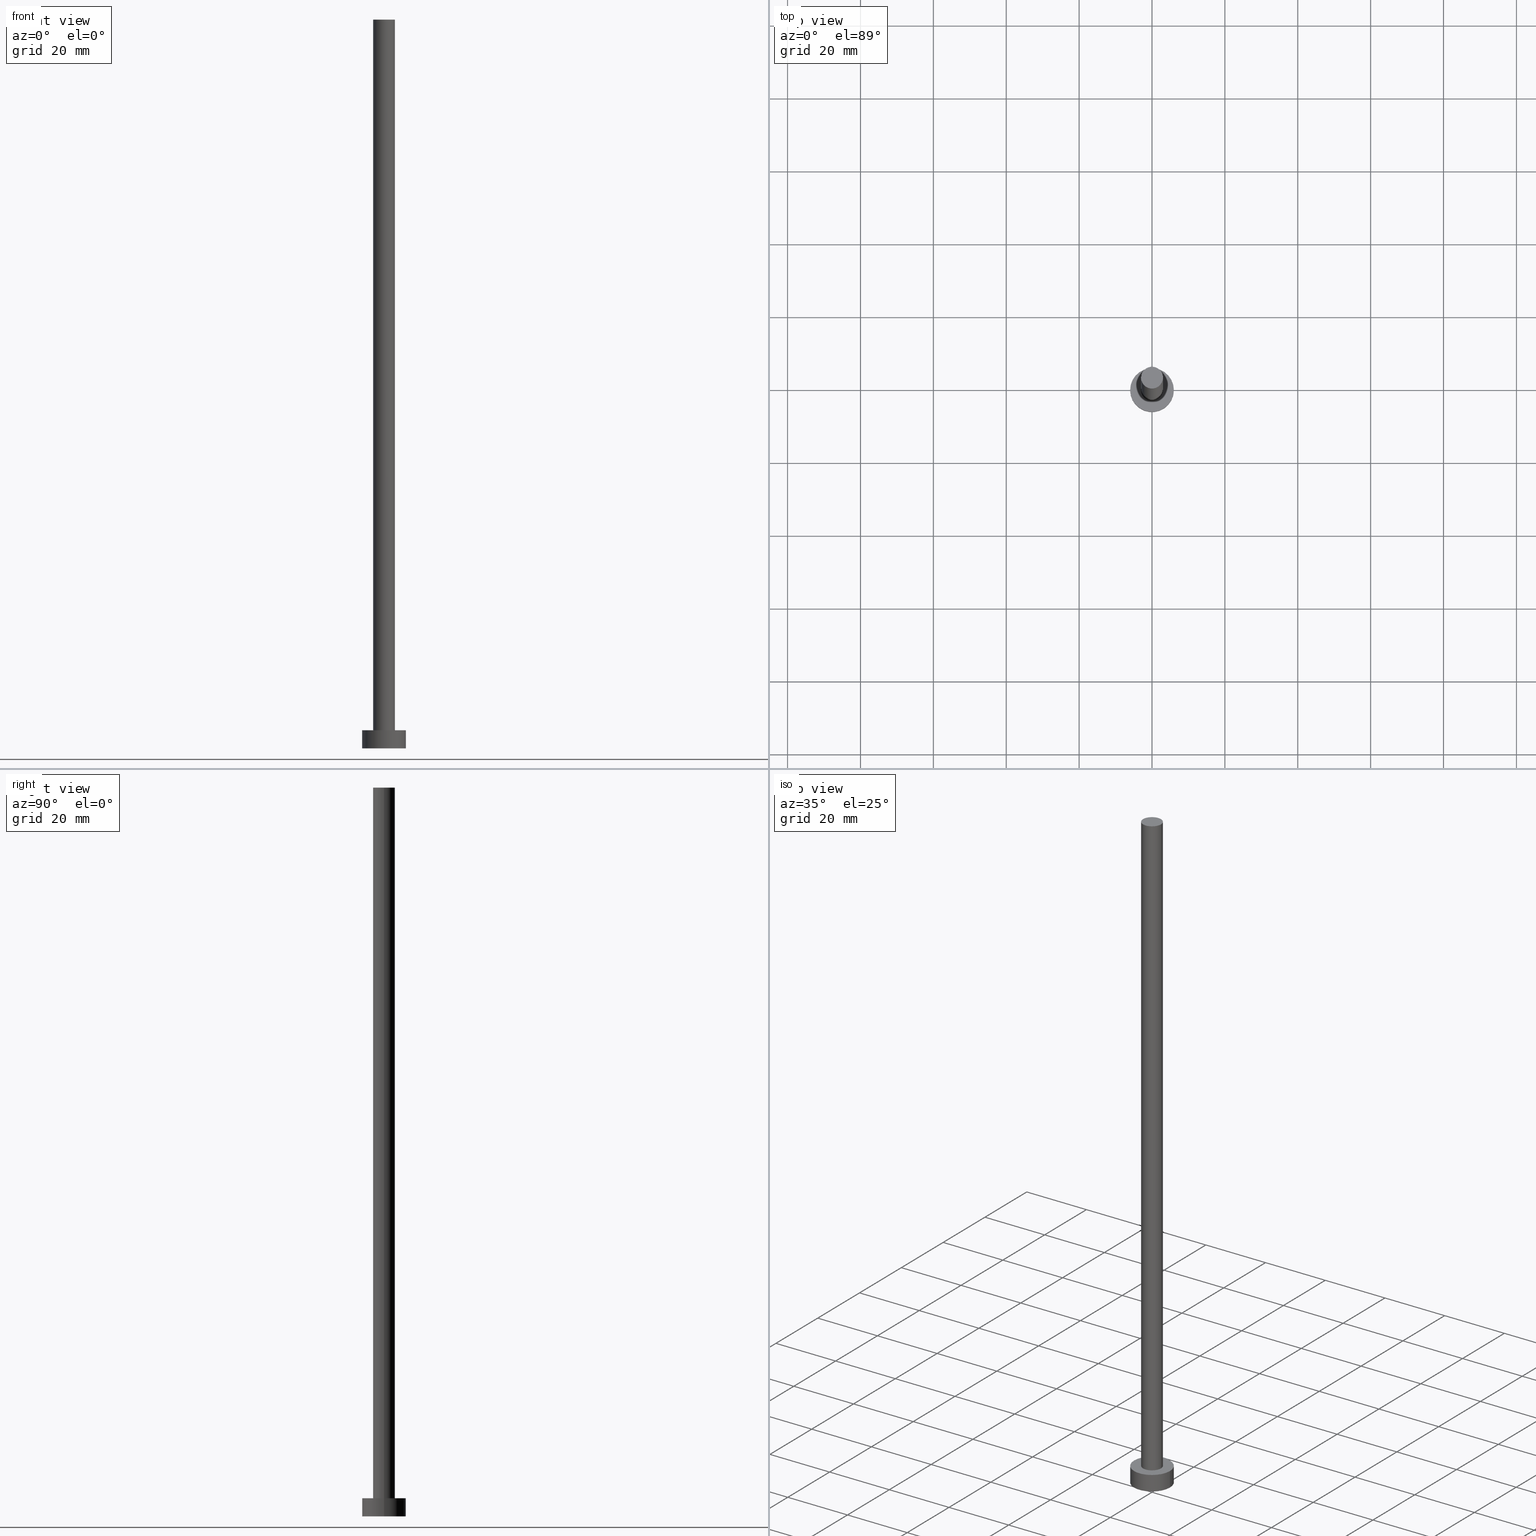
[diagram: canonical four-view strip — front | top / right | iso, engineering-drawing reading convention]
A machine part, canonical four-view strip (front | top / right | iso — engineering-drawing reading convention). The complete STEP part file that produces these views, byte-faithful:
ISO-10303-21;
HEADER;
FILE_DESCRIPTION (( 'STEP AP203' ),
    '1' );
FILE_NAME ('f9cd.STEP',
    '2023-02-12T12:19:15',
    ( '' ),
    ( '' ),
    'SwSTEP 2.0',
    'SolidWorks 2019',
    '' );
FILE_SCHEMA (( 'CONFIG_CONTROL_DESIGN' ));
ENDSEC;

DATA;
#1 = DIRECTION ( 'NONE',  ( 1.000000000000000000, 0.000000000000000000, 0.000000000000000000 ) ) ;
#2 = APPROVAL_DATE_TIME ( #200, #25 ) ;
#3 = CC_DESIGN_APPROVAL ( #128, ( #232 ) ) ;
#4 = EDGE_LOOP ( 'NONE', ( #6, #147 ) ) ;
#5 = APPROVAL ( #41, 'NEUR�EN�' ) ;
#6 = ORIENTED_EDGE ( 'NONE', *, *, #60, .T. ) ;
#7 = APPROVAL_PERSON_ORGANIZATION ( #24, #25, #243 ) ;
#8 = FACE_BOUND ( 'NONE', #68, .T. ) ;
#9 = ADVANCED_FACE ( 'NONE', ( #8, #231 ), #89, .T. ) ;
#10 = ORIENTED_EDGE ( 'NONE', *, *, #113, .F. ) ;
#11 = AXIS2_PLACEMENT_3D ( 'NONE', #175, #195, #137 ) ;
#12 = AXIS2_PLACEMENT_3D ( 'NONE', #32, #215, #219 ) ;
#13 = CARTESIAN_POINT ( 'NONE',  ( 0.000000000000000000, 0.000000000000000000, 5.000000000000000000 ) ) ;
#14 = DIRECTION ( 'NONE',  ( 1.000000000000000000, 0.000000000000000000, 0.000000000000000000 ) ) ;
#15 = DIRECTION ( 'NONE',  ( -1.000000000000000000, 0.000000000000000000, 0.000000000000000000 ) ) ;
#16 = CYLINDRICAL_SURFACE ( 'NONE', #151, 3.000000000000000444 ) ;
#17 = AXIS2_PLACEMENT_3D ( 'NONE', #196, #96, #217 ) ;
#18 = CC_DESIGN_DATE_AND_TIME_ASSIGNMENT ( #123, #61, ( #70 ) ) ;
#19 = FACE_OUTER_BOUND ( 'NONE', #4, .T. ) ;
#20 = CIRCLE ( 'NONE', #188, 6.000000000000000888 ) ;
#21 = APPROVAL_ROLE ( '' ) ;
#22 = AXIS2_PLACEMENT_3D ( 'NONE', #72, #112, #33 ) ;
#23 = COORDINATED_UNIVERSAL_TIME_OFFSET ( 1, 0, .AHEAD. ) ;
#24 = PERSON_AND_ORGANIZATION ( #133, #164 ) ;
#25 = APPROVAL ( #62, 'NEUR�EN�' ) ;
#26 = APPROVAL_ROLE ( '' ) ;
#27 = ORIENTED_EDGE ( 'NONE', *, *, #82, .F. ) ;
#28 = AXIS2_PLACEMENT_3D ( 'NONE', #252, #197, #97 ) ;
#29 = VERTEX_POINT ( 'NONE', #233 ) ;
#30 = ORIENTED_EDGE ( 'NONE', *, *, #102, .T. ) ;
#31 = DIRECTION ( 'NONE',  ( 0.000000000000000000, 0.000000000000000000, 1.000000000000000000 ) ) ;
#32 = CARTESIAN_POINT ( 'NONE',  ( 0.000000000000000000, 0.000000000000000000, 5.000000000000000000 ) ) ;
#33 = DIRECTION ( 'NONE',  ( 1.000000000000000000, 0.000000000000000000, -0.000000000000000000 ) ) ;
#34 = DIRECTION ( 'NONE',  ( -0.000000000000000000, -0.000000000000000000, -1.000000000000000000 ) ) ;
#35 = CARTESIAN_POINT ( 'NONE',  ( -6.000000000000000888, 0.000000000000000000, 0.000000000000000000 ) ) ;
#36 = PRODUCT_RELATED_PRODUCT_CATEGORY ( 'detail', '', ( #162 ) ) ;
#37 = VECTOR ( 'NONE', #78, 1000.000000000000000 ) ;
#38 = CYLINDRICAL_SURFACE ( 'NONE', #160, 3.000000000000000444 ) ;
#39 = ADVANCED_BREP_SHAPE_REPRESENTATION ( 'f9cd', ( #87, #206 ), #178 ) ;
#40 = CALENDAR_DATE ( 2023, 12, 2 ) ;
#41 = APPROVAL_STATUS ( 'not_yet_approved' ) ;
#42 = CC_DESIGN_APPROVAL ( #25, ( #122 ) ) ;
#43 = PLANE ( 'NONE',  #194 ) ;
#44 = CC_DESIGN_DATE_AND_TIME_ASSIGNMENT ( #240, #176, ( #232 ) ) ;
#45 = ORIENTED_EDGE ( 'NONE', *, *, #213, .T. ) ;
#46 = VECTOR ( 'NONE', #116, 1000.000000000000000 ) ;
#47 = EDGE_LOOP ( 'NONE', ( #10, #85 ) ) ;
#48 = SHAPE_DEFINITION_REPRESENTATION ( #84, #39 ) ;
#49 = CARTESIAN_POINT ( 'NONE',  ( 0.000000000000000000, 0.000000000000000000, 5.000000000000000000 ) ) ;
#50 = APPROVAL_PERSON_ORGANIZATION ( #205, #5, #21 ) ;
#51 = CARTESIAN_POINT ( 'NONE',  ( 3.000000000000000444, 3.673940397442060361E-16, 200.0000000000000000 ) ) ;
#52 = EDGE_CURVE ( 'NONE', #103, #229, #161, .T. ) ;
#53 = CYLINDRICAL_SURFACE ( 'NONE', #134, 6.000000000000000888 ) ;
#54 = CARTESIAN_POINT ( 'NONE',  ( 3.000000000000000444, 3.673940397442060361E-16, 200.0000000000000000 ) ) ;
#55 = DIRECTION ( 'NONE',  ( -0.000000000000000000, -0.000000000000000000, -1.000000000000000000 ) ) ;
#56 = EDGE_CURVE ( 'NONE', #29, #127, #20, .T. ) ;
#57 = CARTESIAN_POINT ( 'NONE',  ( -3.000000000000000444, 0.000000000000000000, 5.000000000000000000 ) ) ;
#58 = PERSON_AND_ORGANIZATION_ROLE ( 'creator' ) ;
#59 =( NAMED_UNIT ( * ) SI_UNIT ( $, .STERADIAN. ) SOLID_ANGLE_UNIT ( ) );
#60 = EDGE_CURVE ( 'NONE', #209, #64, #71, .T. ) ;
#61 = DATE_TIME_ROLE ( 'creation_date' ) ;
#62 = APPROVAL_STATUS ( 'not_yet_approved' ) ;
#63 = DATE_AND_TIME ( #187, #184 ) ;
#64 = VERTEX_POINT ( 'NONE', #54 ) ;
#65 = ORIENTED_EDGE ( 'NONE', *, *, #226, .T. ) ;
#66 = VERTEX_POINT ( 'NONE', #247 ) ;
#67 = ORIENTED_EDGE ( 'NONE', *, *, #60, .F. ) ;
#68 = EDGE_LOOP ( 'NONE', ( #86, #144 ) ) ;
#69 = CARTESIAN_POINT ( 'NONE',  ( -3.000000000000000444, 0.000000000000000000, 200.0000000000000000 ) ) ;
#70 = PRODUCT_DEFINITION ( 'NEZN�M�', '', #122, #73 ) ;
#71 = CIRCLE ( 'NONE', #28, 3.000000000000000444 ) ;
#72 = CARTESIAN_POINT ( 'NONE',  ( 0.000000000000000000, 0.000000000000000000, 0.000000000000000000 ) ) ;
#73 = DESIGN_CONTEXT ( 'detailed design', #119, 'design' ) ;
#74 = LINE ( 'NONE', #238, #173 ) ;
#75 = APPROVAL_PERSON_ORGANIZATION ( #80, #128, #26 ) ;
#76 = DIRECTION ( 'NONE',  ( 0.000000000000000000, 0.000000000000000000, 1.000000000000000000 ) ) ;
#77 = ADVANCED_FACE ( 'NONE', ( #149 ), #16, .T. ) ;
#78 = DIRECTION ( 'NONE',  ( -0.000000000000000000, -0.000000000000000000, -1.000000000000000000 ) ) ;
#79 = PERSON_AND_ORGANIZATION ( #133, #164 ) ;
#80 = PERSON_AND_ORGANIZATION ( #133, #164 ) ;
#81 = DIRECTION ( 'NONE',  ( 0.000000000000000000, 0.000000000000000000, 1.000000000000000000 ) ) ;
#82 = EDGE_CURVE ( 'NONE', #64, #209, #230, .T. ) ;
#83 = PERSON_AND_ORGANIZATION_ROLE ( 'design_owner' ) ;
#84 = PRODUCT_DEFINITION_SHAPE ( 'NONE', 'NONE',  #70 ) ;
#85 = ORIENTED_EDGE ( 'NONE', *, *, #52, .F. ) ;
#86 = ORIENTED_EDGE ( 'NONE', *, *, #108, .F. ) ;
#87 = MANIFOLD_SOLID_BREP ( 'P�idat vysunut�m3', #143 ) ;
#88 = CC_DESIGN_PERSON_AND_ORGANIZATION_ASSIGNMENT ( #183, #83, ( #162 ) ) ;
#89 = PLANE ( 'NONE',  #212 ) ;
#90 = ORIENTED_EDGE ( 'NONE', *, *, #56, .T. ) ;
#91 = CC_DESIGN_PERSON_AND_ORGANIZATION_ASSIGNMENT ( #201, #121, ( #70 ) ) ;
#92 = CARTESIAN_POINT ( 'NONE',  ( 0.000000000000000000, 0.000000000000000000, 5.000000000000000000 ) ) ;
#93 = LOCAL_TIME ( 13, 19, 15.00000000000000000, #141 ) ;
#94 = DIRECTION ( 'NONE',  ( -1.000000000000000000, 0.000000000000000000, 0.000000000000000000 ) ) ;
#95 = DIRECTION ( 'NONE',  ( 1.000000000000000000, 0.000000000000000000, 0.000000000000000000 ) ) ;
#96 = DIRECTION ( 'NONE',  ( 0.000000000000000000, 0.000000000000000000, 1.000000000000000000 ) ) ;
#97 = DIRECTION ( 'NONE',  ( 1.000000000000000000, 0.000000000000000000, 0.000000000000000000 ) ) ;
#98 = DIRECTION ( 'NONE',  ( 1.000000000000000000, 0.000000000000000000, 0.000000000000000000 ) ) ;
#99 = PERSON_AND_ORGANIZATION_ROLE ( 'design_supplier' ) ;
#100 = CC_DESIGN_APPROVAL ( #5, ( #70 ) ) ;
#101 = APPROVAL_DATE_TIME ( #204, #5 ) ;
#102 = EDGE_CURVE ( 'NONE', #209, #163, #193, .T. ) ;
#103 = VERTEX_POINT ( 'NONE', #110 ) ;
#104 = ORIENTED_EDGE ( 'NONE', *, *, #52, .T. ) ;
#105 = APPROVAL_DATE_TIME ( #63, #128 ) ;
#106 = ORIENTED_EDGE ( 'NONE', *, *, #108, .T. ) ;
#107 = DIRECTION ( 'NONE',  ( 1.000000000000000000, 0.000000000000000000, -0.000000000000000000 ) ) ;
#108 = EDGE_CURVE ( 'NONE', #163, #66, #218, .T. ) ;
#109 = DIRECTION ( 'NONE',  ( 1.000000000000000000, 0.000000000000000000, 0.000000000000000000 ) ) ;
#110 = CARTESIAN_POINT ( 'NONE',  ( 6.000000000000000888, 7.347880794884120722E-16, 0.000000000000000000 ) ) ;
#111 = CARTESIAN_POINT ( 'NONE',  ( 0.000000000000000000, 0.000000000000000000, 200.0000000000000000 ) ) ;
#112 = DIRECTION ( 'NONE',  ( 0.000000000000000000, 0.000000000000000000, 1.000000000000000000 ) ) ;
#113 = EDGE_CURVE ( 'NONE', #229, #103, #186, .T. ) ;
#114 = FACE_OUTER_BOUND ( 'NONE', #126, .T. ) ;
#115 = LOCAL_TIME ( 13, 19, 15.00000000000000000, #23 ) ;
#116 = DIRECTION ( 'NONE',  ( -0.000000000000000000, -0.000000000000000000, -1.000000000000000000 ) ) ;
#117 = EDGE_CURVE ( 'NONE', #66, #163, #124, .T. ) ;
#118 = APPLICATION_PROTOCOL_DEFINITION ( 'international standard', 'config_control_design', 1994, #119 ) ;
#119 = APPLICATION_CONTEXT ( 'configuration controlled 3d designs of mechanical parts and assemblies' ) ;
#120 = VECTOR ( 'NONE', #138, 1000.000000000000000 ) ;
#121 = PERSON_AND_ORGANIZATION_ROLE ( 'creator' ) ;
#122 = PRODUCT_DEFINITION_FORMATION_WITH_SPECIFIED_SOURCE ( 'LIBOVOLN�', '', #162, .NOT_KNOWN. ) ;
#123 = DATE_AND_TIME ( #253, #237 ) ;
#124 = CIRCLE ( 'NONE', #202, 3.000000000000000444 ) ;
#125 = ORIENTED_EDGE ( 'NONE', *, *, #180, .T. ) ;
#126 = EDGE_LOOP ( 'NONE', ( #145, #67, #30, #106 ) ) ;
#127 = VERTEX_POINT ( 'NONE', #234 ) ;
#128 = APPROVAL ( #242, 'NEUR�EN�' ) ;
#129 = CARTESIAN_POINT ( 'NONE',  ( 0.000000000000000000, 0.000000000000000000, 0.000000000000000000 ) ) ;
#130 = AXIS2_PLACEMENT_3D ( 'NONE', #129, #211, #109 ) ;
#131 = CARTESIAN_POINT ( 'NONE',  ( 0.000000000000000000, 0.000000000000000000, 200.0000000000000000 ) ) ;
#132 = DIRECTION ( 'NONE',  ( -0.000000000000000000, -0.000000000000000000, -1.000000000000000000 ) ) ;
#133 = PERSON ( 'NEUR�EN�', 'NEUR�EN�', 'NEUR�EN�', ('NEUR�EN�'), ('NEUR�EN�'), ('NEUR�EN�') ) ;
#134 = AXIS2_PLACEMENT_3D ( 'NONE', #251, #132, #94 ) ;
#135 = EDGE_CURVE ( 'NONE', #64, #66, #249, .T. ) ;
#136 = CARTESIAN_POINT ( 'NONE',  ( 0.000000000000000000, 0.000000000000000000, 200.0000000000000000 ) ) ;
#137 = DIRECTION ( 'NONE',  ( 1.000000000000000000, 0.000000000000000000, 0.000000000000000000 ) ) ;
#138 = DIRECTION ( 'NONE',  ( -0.000000000000000000, -0.000000000000000000, -1.000000000000000000 ) ) ;
#139 = CARTESIAN_POINT ( 'NONE',  ( 0.000000000000000000, 0.000000000000000000, 0.000000000000000000 ) ) ;
#140 = COORDINATED_UNIVERSAL_TIME_OFFSET ( 1, 0, .AHEAD. ) ;
#141 = COORDINATED_UNIVERSAL_TIME_OFFSET ( 1, 0, .AHEAD. ) ;
#142 = DIRECTION ( 'NONE',  ( 1.000000000000000000, 0.000000000000000000, -0.000000000000000000 ) ) ;
#143 = CLOSED_SHELL ( 'NONE', ( #77, #158, #166, #9, #210, #174, #250 ) ) ;
#144 = ORIENTED_EDGE ( 'NONE', *, *, #117, .F. ) ;
#145 = ORIENTED_EDGE ( 'NONE', *, *, #135, .F. ) ;
#146 = ORIENTED_EDGE ( 'NONE', *, *, #102, .F. ) ;
#147 = ORIENTED_EDGE ( 'NONE', *, *, #82, .T. ) ;
#148 = ORIENTED_EDGE ( 'NONE', *, *, #226, .F. ) ;
#149 = FACE_OUTER_BOUND ( 'NONE', #246, .T. ) ;
#150 = PLANE ( 'NONE',  #22 ) ;
#151 = AXIS2_PLACEMENT_3D ( 'NONE', #111, #55, #15 ) ;
#152 = CARTESIAN_POINT ( 'NONE',  ( 0.000000000000000000, 0.000000000000000000, 0.000000000000000000 ) ) ;
#153 = LOCAL_TIME ( 13, 19, 15.00000000000000000, #140 ) ;
#154 = DIRECTION ( 'NONE',  ( -1.000000000000000000, 0.000000000000000000, 0.000000000000000000 ) ) ;
#155 = DIRECTION ( 'NONE',  ( 1.000000000000000000, 0.000000000000000000, 0.000000000000000000 ) ) ;
#156 = SECURITY_CLASSIFICATION_LEVEL ( 'unclassified' ) ;
#157 =( NAMED_UNIT ( * ) PLANE_ANGLE_UNIT ( ) SI_UNIT ( $, .RADIAN. ) );
#158 = ADVANCED_FACE ( 'NONE', ( #239 ), #53, .T. ) ;
#159 = PERSON_AND_ORGANIZATION ( #133, #164 ) ;
#160 = AXIS2_PLACEMENT_3D ( 'NONE', #131, #172, #154 ) ;
#161 = CIRCLE ( 'NONE', #130, 6.000000000000000888 ) ;
#162 = PRODUCT ( 'f9cd', 'f9cd', '', ( #179 ) ) ;
#163 = VERTEX_POINT ( 'NONE', #57 ) ;
#164 = ORGANIZATION ( 'NEUR�EN�', 'NEUR�EN�', '' ) ;
#165 = EDGE_LOOP ( 'NONE', ( #148, #45, #104, #190 ) ) ;
#166 = ADVANCED_FACE ( 'NONE', ( #216 ), #171, .T. ) ;
#167 = ORIENTED_EDGE ( 'NONE', *, *, #135, .T. ) ;
#168 = DIRECTION ( 'NONE',  ( 0.000000000000000000, 0.000000000000000000, 1.000000000000000000 ) ) ;
#169 = CARTESIAN_POINT ( 'NONE',  ( -6.000000000000000888, 0.000000000000000000, 5.000000000000000000 ) ) ;
#170 = CC_DESIGN_PERSON_AND_ORGANIZATION_ASSIGNMENT ( #203, #99, ( #122 ) ) ;
#171 = CYLINDRICAL_SURFACE ( 'NONE', #12, 6.000000000000000888 ) ;
#172 = DIRECTION ( 'NONE',  ( -0.000000000000000000, -0.000000000000000000, -1.000000000000000000 ) ) ;
#173 = VECTOR ( 'NONE', #34, 1000.000000000000000 ) ;
#174 = ADVANCED_FACE ( 'NONE', ( #114 ), #38, .T. ) ;
#175 = CARTESIAN_POINT ( 'NONE',  ( 0.000000000000000000, 0.000000000000000000, 5.000000000000000000 ) ) ;
#176 = DATE_TIME_ROLE ( 'classification_date' ) ;
#177 = APPLICATION_CONTEXT ( 'configuration controlled 3d designs of mechanical parts and assemblies' ) ;
#178 =( GEOMETRIC_REPRESENTATION_CONTEXT ( 3 ) GLOBAL_UNCERTAINTY_ASSIGNED_CONTEXT ( ( #241 ) ) GLOBAL_UNIT_ASSIGNED_CONTEXT ( ( #181, #157, #59 ) ) REPRESENTATION_CONTEXT ( 'NONE', 'WORKASPACE' ) );
#179 = MECHANICAL_CONTEXT ( 'NONE', #177, 'mechanical' ) ;
#180 = EDGE_CURVE ( 'NONE', #29, #229, #214, .T. ) ;
#181 =( LENGTH_UNIT ( ) NAMED_UNIT ( * ) SI_UNIT ( .MILLI., .METRE. ) );
#182 = AXIS2_PLACEMENT_3D ( 'NONE', #136, #76, #155 ) ;
#183 = PERSON_AND_ORGANIZATION ( #133, #164 ) ;
#184 = LOCAL_TIME ( 13, 19, 15.00000000000000000, #228 ) ;
#185 = CC_DESIGN_PERSON_AND_ORGANIZATION_ASSIGNMENT ( #159, #225, ( #232 ) ) ;
#186 = CIRCLE ( 'NONE', #227, 6.000000000000000888 ) ;
#187 = CALENDAR_DATE ( 2023, 12, 2 ) ;
#188 = AXIS2_PLACEMENT_3D ( 'NONE', #92, #168, #14 ) ;
#189 = ORIENTED_EDGE ( 'NONE', *, *, #117, .T. ) ;
#190 = ORIENTED_EDGE ( 'NONE', *, *, #180, .F. ) ;
#191 = ORIENTED_EDGE ( 'NONE', *, *, #56, .F. ) ;
#192 = EDGE_LOOP ( 'NONE', ( #207, #191, #125, #208 ) ) ;
#193 = LINE ( 'NONE', #69, #120 ) ;
#194 = AXIS2_PLACEMENT_3D ( 'NONE', #222, #81, #142 ) ;
#195 = DIRECTION ( 'NONE',  ( 0.000000000000000000, 0.000000000000000000, 1.000000000000000000 ) ) ;
#196 = CARTESIAN_POINT ( 'NONE',  ( 0.000000000000000000, 0.000000000000000000, 5.000000000000000000 ) ) ;
#197 = DIRECTION ( 'NONE',  ( 0.000000000000000000, 0.000000000000000000, 1.000000000000000000 ) ) ;
#198 = CIRCLE ( 'NONE', #17, 6.000000000000000888 ) ;
#199 = FACE_OUTER_BOUND ( 'NONE', #47, .T. ) ;
#200 = DATE_AND_TIME ( #223, #153 ) ;
#201 = PERSON_AND_ORGANIZATION ( #133, #164 ) ;
#202 = AXIS2_PLACEMENT_3D ( 'NONE', #13, #236, #98 ) ;
#203 = PERSON_AND_ORGANIZATION ( #133, #164 ) ;
#204 = DATE_AND_TIME ( #40, #93 ) ;
#205 = PERSON_AND_ORGANIZATION ( #133, #164 ) ;
#206 = AXIS2_PLACEMENT_3D ( 'NONE', #139, #220, #1 ) ;
#207 = ORIENTED_EDGE ( 'NONE', *, *, #213, .F. ) ;
#208 = ORIENTED_EDGE ( 'NONE', *, *, #113, .T. ) ;
#209 = VERTEX_POINT ( 'NONE', #248 ) ;
#210 = ADVANCED_FACE ( 'NONE', ( #199 ), #150, .F. ) ;
#211 = DIRECTION ( 'NONE',  ( 0.000000000000000000, 0.000000000000000000, 1.000000000000000000 ) ) ;
#212 = AXIS2_PLACEMENT_3D ( 'NONE', #49, #31, #107 ) ;
#213 = EDGE_CURVE ( 'NONE', #127, #103, #74, .T. ) ;
#214 = LINE ( 'NONE', #169, #46 ) ;
#215 = DIRECTION ( 'NONE',  ( -0.000000000000000000, -0.000000000000000000, -1.000000000000000000 ) ) ;
#216 = FACE_OUTER_BOUND ( 'NONE', #192, .T. ) ;
#217 = DIRECTION ( 'NONE',  ( 1.000000000000000000, 0.000000000000000000, 0.000000000000000000 ) ) ;
#218 = CIRCLE ( 'NONE', #11, 3.000000000000000444 ) ;
#219 = DIRECTION ( 'NONE',  ( -1.000000000000000000, 0.000000000000000000, 0.000000000000000000 ) ) ;
#220 = DIRECTION ( 'NONE',  ( 0.000000000000000000, 0.000000000000000000, 1.000000000000000000 ) ) ;
#221 = CC_DESIGN_PERSON_AND_ORGANIZATION_ASSIGNMENT ( #79, #58, ( #122 ) ) ;
#222 = CARTESIAN_POINT ( 'NONE',  ( 0.000000000000000000, 0.000000000000000000, 200.0000000000000000 ) ) ;
#223 = CALENDAR_DATE ( 2023, 12, 2 ) ;
#224 = CC_DESIGN_SECURITY_CLASSIFICATION ( #232, ( #122 ) ) ;
#225 = PERSON_AND_ORGANIZATION_ROLE ( 'classification_officer' ) ;
#226 = EDGE_CURVE ( 'NONE', #127, #29, #198, .T. ) ;
#227 = AXIS2_PLACEMENT_3D ( 'NONE', #152, #235, #95 ) ;
#228 = COORDINATED_UNIVERSAL_TIME_OFFSET ( 1, 0, .AHEAD. ) ;
#229 = VERTEX_POINT ( 'NONE', #35 ) ;
#230 = CIRCLE ( 'NONE', #182, 3.000000000000000444 ) ;
#231 = FACE_OUTER_BOUND ( 'NONE', #245, .T. ) ;
#232 = SECURITY_CLASSIFICATION ( '', '', #156 ) ;
#233 = CARTESIAN_POINT ( 'NONE',  ( -6.000000000000000888, 0.000000000000000000, 5.000000000000000000 ) ) ;
#234 = CARTESIAN_POINT ( 'NONE',  ( 6.000000000000000888, 7.347880794884120722E-16, 5.000000000000000000 ) ) ;
#235 = DIRECTION ( 'NONE',  ( 0.000000000000000000, 0.000000000000000000, 1.000000000000000000 ) ) ;
#236 = DIRECTION ( 'NONE',  ( 0.000000000000000000, 0.000000000000000000, 1.000000000000000000 ) ) ;
#237 = LOCAL_TIME ( 13, 19, 15.00000000000000000, #255 ) ;
#238 = CARTESIAN_POINT ( 'NONE',  ( 6.000000000000000888, 7.347880794884120722E-16, 5.000000000000000000 ) ) ;
#239 = FACE_OUTER_BOUND ( 'NONE', #165, .T. ) ;
#240 = DATE_AND_TIME ( #244, #115 ) ;
#241 = UNCERTAINTY_MEASURE_WITH_UNIT (LENGTH_MEASURE( 1.000000000000000082E-05 ), #181, 'distance_accuracy_value', 'NONE');
#242 = APPROVAL_STATUS ( 'not_yet_approved' ) ;
#243 = APPROVAL_ROLE ( '' ) ;
#244 = CALENDAR_DATE ( 2023, 12, 2 ) ;
#245 = EDGE_LOOP ( 'NONE', ( #90, #65 ) ) ;
#246 = EDGE_LOOP ( 'NONE', ( #27, #167, #189, #146 ) ) ;
#247 = CARTESIAN_POINT ( 'NONE',  ( 3.000000000000000444, 3.673940397442060361E-16, 5.000000000000000000 ) ) ;
#248 = CARTESIAN_POINT ( 'NONE',  ( -3.000000000000000444, 0.000000000000000000, 200.0000000000000000 ) ) ;
#249 = LINE ( 'NONE', #51, #37 ) ;
#250 = ADVANCED_FACE ( 'NONE', ( #19 ), #43, .T. ) ;
#251 = CARTESIAN_POINT ( 'NONE',  ( 0.000000000000000000, 0.000000000000000000, 5.000000000000000000 ) ) ;
#252 = CARTESIAN_POINT ( 'NONE',  ( 0.000000000000000000, 0.000000000000000000, 200.0000000000000000 ) ) ;
#253 = CALENDAR_DATE ( 2023, 12, 2 ) ;
#254 = APPLICATION_PROTOCOL_DEFINITION ( 'international standard', 'config_control_design', 1994, #177 ) ;
#255 = COORDINATED_UNIVERSAL_TIME_OFFSET ( 1, 0, .AHEAD. ) ;
ENDSEC;
END-ISO-10303-21;
